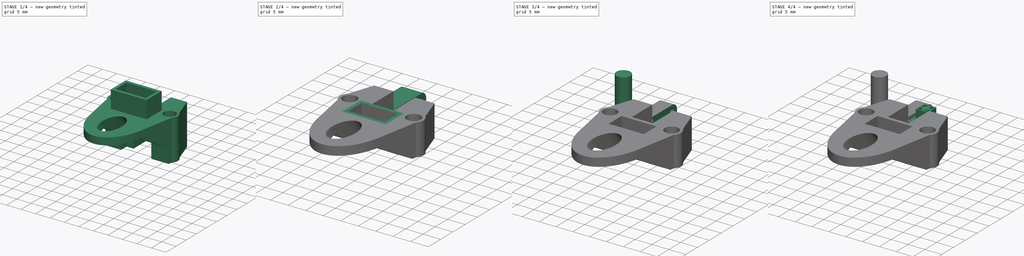
[diagram: build sequence overview — one tinted view per stage of 4, left to right]
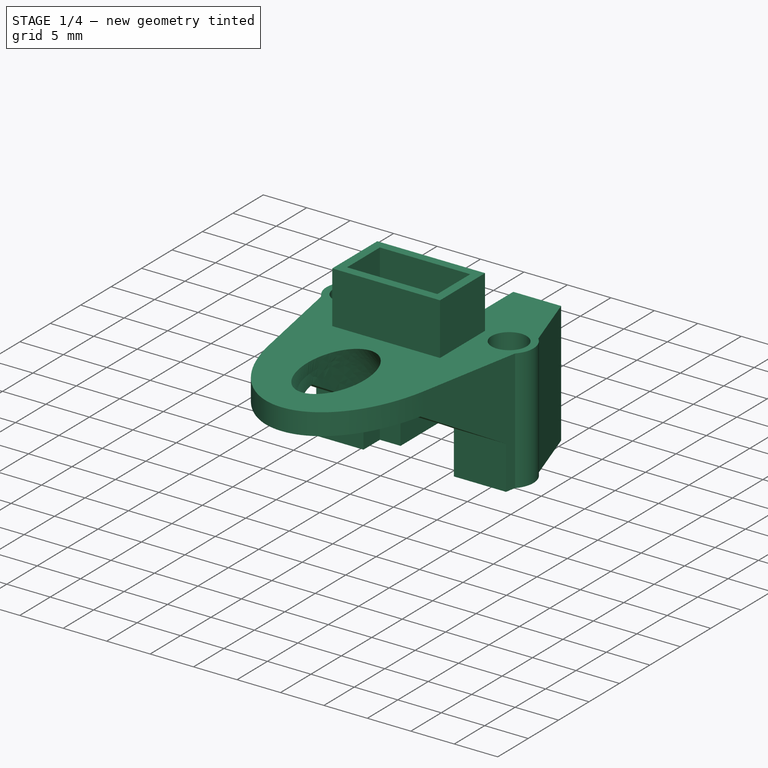
[diagram: stage 1 of 4 — iso view after this stage's code; geometry added in this stage tinted green]
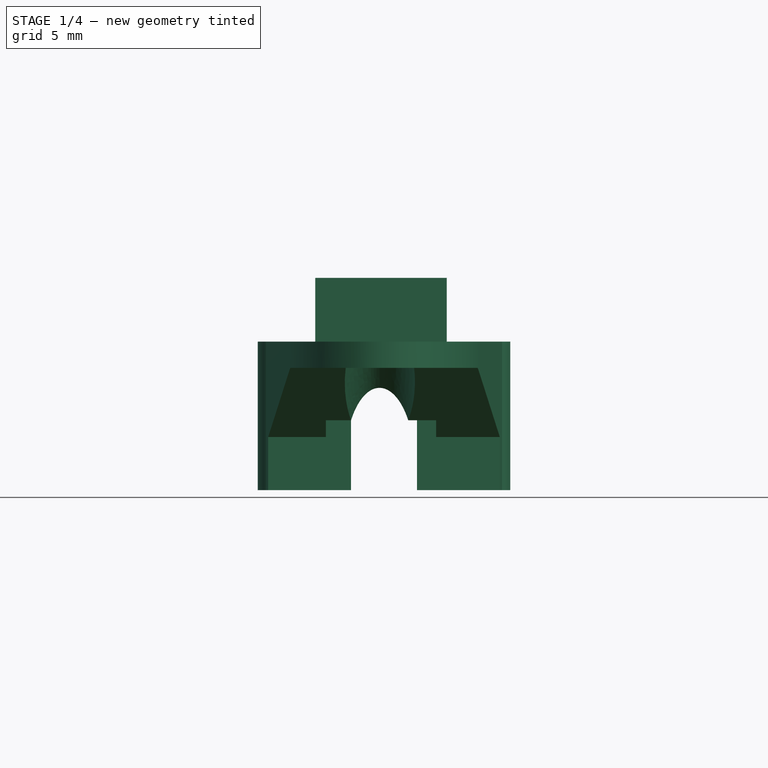
[diagram: stage 1 of 4 — front view after this stage's code; geometry added in this stage tinted green]
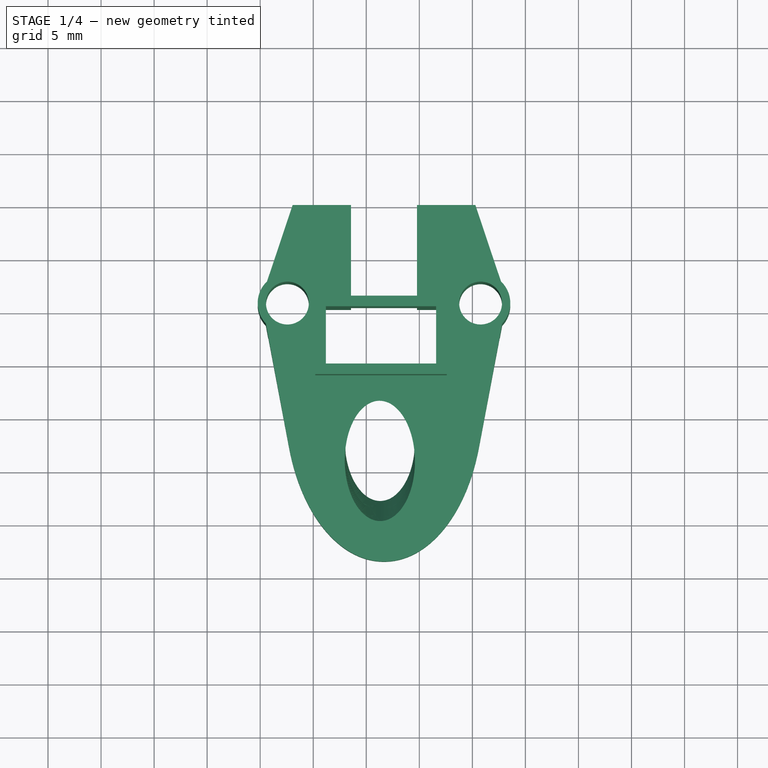
[diagram: stage 1 of 4 — top view after this stage's code; geometry added in this stage tinted green]
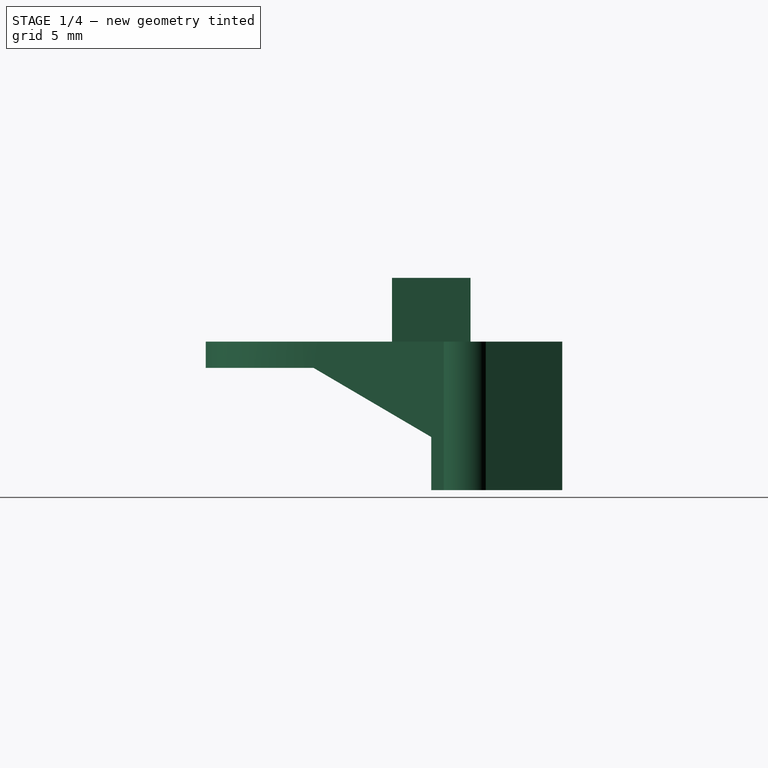
[diagram: stage 1 of 4 — right view after this stage's code; geometry added in this stage tinted green]
FCSTD DOCUMENT  (FreeCAD 0.21R33771 (Git))
Label: Holder
License: All rights reserved
LicenseURL: http://en.wikipedia.org/wiki/All_rights_reserved
objects: Sketcher::SketchObject×14, PartDesign::Pad×7, PartDesign::Pocket×7, PartDesign::Body×4, PartDesign::Plane×1
note: 47 computed .brp shape members not serialized (recipe doc carries the construction recipe); baked Part::Feature solids carry a one-line shape summary decoded from their .brp

FEATURE [Sketcher::SketchObject] Sketch002
  AttachmentOffset = pos=(0,0,25) rot=(0,0,1;0rad)
  FullyConstrained = false
  MapMode = 5
  Placement = pos=(25,-5.6e-15,5.6e-15) rot=(0.57735,0.57735,0.57735;2.0944rad)
  Support = -> [YZ_Plane]
  sketch-geometry (9):
    g0: LineSegment StartX=-34.7458 StartY=6.51976 StartZ=0 EndX=-34.7458 EndY=-0.002343 EndZ=0
    g1: LineSegment StartX=-34.7458 StartY=6.51976 StartZ=0 EndX=-23.4458 EndY=6.51976 EndZ=0
    g2: LineSegment StartX=-34.7458 StartY=2.68591 StartZ=0 EndX=-23.4458 EndY=2.68591 EndZ=0
    g3: LineSegment StartX=-23.4458 StartY=2.68591 StartZ=0 EndX=-23.4458 EndY=6.51976 EndZ=0
    g4: LineSegment StartX=-23.4458 StartY=6.51976 StartZ=0 EndX=-12.3455 EndY=6e-16 EndZ=0
    g5: LineSegment StartX=-34.7458 StartY=-0.002343 StartZ=0 EndX=-12.3455 EndY=6e-16 EndZ=0
    g6: LineSegment StartX=-34.7458 StartY=-0.002343 StartZ=0 EndX=-34.7458 EndY=-6.03706 EndZ=0
    g7: LineSegment StartX=-12.3455 StartY=6e-16 StartZ=0 EndX=-12.3455 EndY=-6.03706 EndZ=0
    g8: LineSegment StartX=-12.3455 StartY=-6.03706 StartZ=0 EndX=-34.7458 EndY=-6.03706 EndZ=0
  constraints (20):
    c: Vertical(g0)
    c: Horizontal(g1)
    c: PointOnObject(g2,g0)
    c: Horizontal(g2)
    c: Distance(g2) = 11.3
    c: Coincident(g3,g2)
    c: Vertical(g3)
    c: Coincident(g4,g3)
    c: PointOnObject(g4,g-1)
    c: Coincident(g5,g0)
    c: Coincident(g5,g4)
    c: Coincident(g1,g3)
    c: Coincident(g0,g1)
    c: Coincident(g6,g0)
    c: Vertical(g6)
    c: Coincident(g7,g4)
    c: Vertical(g7)
    c: Horizontal(g8)
    c: Coincident(g6,g8)
    c: Coincident(g7,g8)
FEATURE [Sketcher::SketchObject] Sketch004
  AttachmentOffset = pos=(0,0,5) rot=(0,0,1;0rad)
  FullyConstrained = false
  MapMode = 5
  Placement = pos=(0,0,5) rot=(0,0,1;0rad)
  Support = -> [XY_Plane]
  sketch-geometry (12):
    g0: LineSegment StartX=5.18563 StartY=-8.64848 StartZ=0 EndX=17.5856 EndY=-8.64848 EndZ=0
    g1: LineSegment StartX=17.5856 StartY=-8.64848 StartZ=0 EndX=17.5856 EndY=-16.0485 EndZ=0
    g2: LineSegment StartX=17.5856 StartY=-16.0485 StartZ=0 EndX=5.18563 EndY=-16.0485 EndZ=0
    g3: LineSegment StartX=5.18563 StartY=-16.0485 StartZ=0 EndX=5.18563 EndY=-8.64848 EndZ=0
    g4: LineSegment StartX=6.18563 StartY=-15.0485 StartZ=0 EndX=6.18563 EndY=-9.64848 EndZ=0
    g5: LineSegment StartX=6.18563 StartY=-9.64848 StartZ=0 EndX=16.5856 EndY=-9.64848 EndZ=0
    g6: LineSegment StartX=16.5856 StartY=-9.64848 StartZ=0 EndX=16.5856 EndY=-15.0485 EndZ=0
    g7: LineSegment StartX=6.18563 StartY=-13.3116 StartZ=0 EndX=5.18563 EndY=-13.3116 EndZ=0
    g8: LineSegment StartX=16.5856 StartY=-12.4958 StartZ=0 EndX=17.5856 EndY=-12.4958 EndZ=0
    g9: LineSegment StartX=10.8789 StartY=-9.64848 StartZ=0 EndX=10.8789 EndY=-8.64848 EndZ=0
    g10: LineSegment StartX=6.18563 StartY=-15.0485 StartZ=0 EndX=16.5856 EndY=-15.0485 EndZ=0
    g11: LineSegment StartX=9.56697 StartY=-15.0485 StartZ=0 EndX=9.56697 EndY=-16.0485 EndZ=0
  constraints (34):
    c: Coincident(g0,g1)
    c: Coincident(g1,g2)
    c: Coincident(g2,g3)
    c: Coincident(g3,g0)
    c: Horizontal(g0)
    c: Horizontal(g2)
    c: Vertical(g1)
    c: Vertical(g3)
    c: Vertical(g4)
    c: Distance(g4) = 5.4
    c: Coincident(g5,g4)
    c: Horizontal(g5)
    c: Coincident(g6,g5)
    c: Vertical(g6)
    c: Distance(g5) = 10.4
    c: PointOnObject(g7,g4)
    c: PointOnObject(g7,g3)
    c: Horizontal(g7)
    c: Distance(g7) = 1
    c: PointOnObject(g8,g6)
    c: PointOnObject(g8,g1)
    c: Perpendicular(g6,g8)
    c: Distance(g8) = 1
    c: PointOnObject(g9,g5)
    c: PointOnObject(g9,g0)
    c: Perpendicular(g5,g9)
    c: Distance(g9) = 1
    c: Coincident(g10,g4)
    c: Coincident(g10,g6)
    c: Horizontal(g10)
    c: PointOnObject(g11,g10)
    c: PointOnObject(g11,g2)
    c: Vertical(g11)
    c: Distance(g11) = 1
FEATURE [Sketcher::SketchObject] Sketch
  ExternalGeometry = -> [Sketch004]
  FullyConstrained = false
  MapMode = 5
  Placement = pos=(0,0,-5) rot=(0,0,1;3.14159rad)
  sketch-geometry (31):
    g0: LineSegment StartX=-20.2806 StartY=0 StartZ=0 EndX=-14.7756 EndY=0 EndZ=0
    g1: LineSegment StartX=-20.2806 StartY=0 StartZ=0 EndX=-22.7 EndY=7.21 EndZ=0
    g2: Circle CenterX=-20.7756 CenterY=9.24391 CenterZ=0 NormalX=0 NormalY=0 NormalZ=1 AngleXU=0 Radius=2.02
    g3: ArcOfCircle CenterX=-20.7756 CenterY=9.24391 CenterZ=0 NormalX=0 NormalY=0 NormalZ=1 AngleXU=0 Radius=2.8 StartAngle=2.38256 EndAngle=3.95466
    g4: LineSegment StartX=-22.8079 StartY=11.17 StartZ=0 EndX=-22.8079 EndY=22.7764 EndZ=0
    g5: LineSegment StartX=-14.7756 StartY=0 StartZ=0 EndX=-8.6381 EndY=0 EndZ=0
    g6: LineSegment StartX=-11.67 StartY=33.61 StartZ=0 EndX=-11.67 EndY=0 EndZ=0
    g7: ArcOfEllipse CenterX=-11.8107 CenterY=18.673 CenterZ=0 NormalX=0 NormalY=0 NormalZ=1 MajorRadius=14.9377 MinorRadius=9.205 AngleXU=1.56138 StartAngle=0 EndAngle=1.27722
    g8: LineSegment StartX=-11.67 StartY=33.61 StartZ=0 EndX=-11.9514 EndY=3.73591 EndZ=0
    g9: LineSegment StartX=-21.0153 StartY=18.7597 StartZ=0 EndX=-2.60613 EndY=18.5862 EndZ=0
    g10: GeomPoint X=-11.6999 Y=30.4369 Z=0
    g11: GeomPoint X=-11.9215 Y=6.90899 Z=0
    g12: LineSegment StartX=-22.807 StartY=11.1709 StartZ=0 EndX=-20.5808 EndY=23.0784 EndZ=0
    g13: LineSegment StartX=-14.7756 StartY=0 StartZ=0 EndX=-14.7756 EndY=9.64848 EndZ=0
    g14: LineSegment StartX=-16.5856 StartY=9.64848 StartZ=0 EndX=-14.7756 EndY=9.64848 EndZ=0
    g15: LineSegment StartX=-3.05943 StartY=0 StartZ=0 EndX=-8.56437 EndY=0 EndZ=0
    g16: LineSegment StartX=-3.05943 StartY=0 StartZ=0 EndX=-0.64 EndY=7.21 EndZ=0
    g17: Circle CenterX=-2.56437 CenterY=9.24391 CenterZ=0 NormalX=0 NormalY=0 NormalZ=1 AngleXU=0 Radius=2.02
    g18: ArcOfCircle CenterX=-2.56437 CenterY=9.24391 CenterZ=0 NormalX=0 NormalY=0 NormalZ=1 AngleXU=0 Radius=2.8 StartAngle=5.47012 EndAngle=7.04221
    g19: LineSegment StartX=-0.532082 StartY=11.17 StartZ=0 EndX=-0.532082 EndY=22.7764 EndZ=0
    g20: ArcOfEllipse CenterX=-11.5293 CenterY=18.673 CenterZ=0 NormalX=0 NormalY=0 NormalZ=1 MajorRadius=14.9377 MinorRadius=9.205 AngleXU=1.58022 StartAngle=5.00596 EndAngle=6.28319
    g21: LineSegment StartX=-11.67 StartY=33.61 StartZ=0 EndX=-11.3886 EndY=3.73591 EndZ=0
    g22: GeomPoint X=-11.6401 Y=30.4369 Z=0
    g23: GeomPoint X=-11.4185 Y=6.90899 Z=0
    g24: LineSegment StartX=-0.532956 StartY=11.1709 StartZ=0 EndX=-2.75922 EndY=23.0784 EndZ=0
    g25: LineSegment StartX=-8.56437 StartY=0 StartZ=0 EndX=-8.56437 EndY=9.64848 EndZ=0
    g26: LineSegment StartX=-16.5856 StartY=9.64848 StartZ=0 EndX=-14.7756 EndY=9.64848 EndZ=0
    g27: LineSegment StartX=-8.56437 StartY=9.64848 StartZ=0 EndX=-6.18563 EndY=9.64848 EndZ=0
    g28: LineSegment StartX=-16.5856 StartY=9.64848 StartZ=0 EndX=-16.5856 EndY=15.0485 EndZ=0
    g29: LineSegment StartX=-6.18563 StartY=9.64848 StartZ=0 EndX=-6.18563 EndY=15.0485 EndZ=0
    g30: LineSegment StartX=-16.5856 StartY=15.0485 StartZ=0 EndX=-6.18563 EndY=15.0485 EndZ=0
  constraints (11):
    c: Coincident(g26,g13)
    c: Horizontal(g26)
    c: Coincident(g27,g25)
    c: Horizontal(g27)
    c: Coincident(g28,g26)
    c: Vertical(g28)
    c: Coincident(g29,g27)
    c: Vertical(g29)
    c: Coincident(g30,g28)
    c: Coincident(g30,g29)
    c: Horizontal(g30)
FEATURE [PartDesign::Pad] Pad  label="Body001"
  Direction = (0,1e-15,1)
  Length = 14
  Length2 = 10
  Placement = pos=(0,0,-5) rot=(0,0,1;3.14159rad)
  Profile = -> Sketch
  ReferenceAxis = -> Sketch [N_Axis]
  Type = 0
FEATURE [PartDesign::Pocket] Pocket001  label="FrontDiagPocket"
  BaseFeature = -> Pad
  Direction = (-1,2e-16,-3e-16)
  Length = 30
  Length2 = 5
  Placement = pos=(0,0,-5) rot=(0,0,1;3.14159rad)
  Profile = -> Sketch002
  ReferenceAxis = -> Sketch002 [N_Axis]
  Type = 0
FEATURE [PartDesign::Pad] Pad001  label="XT30Holder"
  BaseFeature = -> Pocket001
  Direction = (0,0,1)
  Length = 10
  Length2 = 10
  Placement = pos=(0,0,-5) rot=(0,0,1;3.14159rad)
  Profile = -> Sketch004
  ReferenceAxis = -> Sketch004 [N_Axis]
  Type = 0
FEATURE [PartDesign::Plane] DatumPlane
  AttachmentOffset = pos=(-13,22,7) rot=(1,0,0;-0.663225rad)
  Length = 25.46
  MapMode = 5
  Placement = pos=(13,-22,16) rot=(0,0.325568,-0.945519;3.14159rad)
  ResizeMode = 1
  Support = -> [Pad001]
  Width = 31.1
FEATURE [Sketcher::SketchObject] Sketch005
  AttachmentOffset = pos=(-8,49,0) rot=(0,0,1;0rad)
  FullyConstrained = false
  MapMode = 5
  Placement = pos=(21,-60.6125,-14.1674) rot=(0,-0.325568,0.945519;3.14159rad)
  Support = -> [DatumPlane]
  sketch-geometry (6):
    g0: Circle CenterX=9.72225 CenterY=-43.0138 CenterZ=0 NormalX=0 NormalY=0 NormalZ=1 AngleXU=0 Radius=3.15882
    g1: Ellipse CenterX=9.72225 CenterY=-43.0138 CenterZ=0 NormalX=0 NormalY=0 NormalZ=1 MajorRadius=4.4677 MinorRadius=3.30767 AngleXU=1.5862
    g2: LineSegment StartX=9.65342 StartY=-38.5466 StartZ=0 EndX=9.79108 EndY=-47.481 EndZ=0
    g3: LineSegment StartX=6.41497 StartY=-43.0648 StartZ=0 EndX=13.0295 EndY=-42.9629 EndZ=0
    g4: GeomPoint X=9.67598 Y=-40.0109 Z=0
    g5: GeomPoint X=9.76852 Y=-46.0167 Z=0
  constraints (2):
    c: InternalAlignment(g2-g5 -> g1) x4
    c: Coincident(g1,g0)
FEATURE [PartDesign::Pocket] Pocket002  label="AntenaDiagonalHole"
  BaseFeature = -> Pad001
  Direction = (0,0.615661,-0.788011)
  Length = 30
  Length2 = 5
  Placement = pos=(0,0,-5) rot=(0,0,1;3.14159rad)
  Profile = -> Sketch005
  ReferenceAxis = -> Sketch005 [N_Axis]
  Type = 0
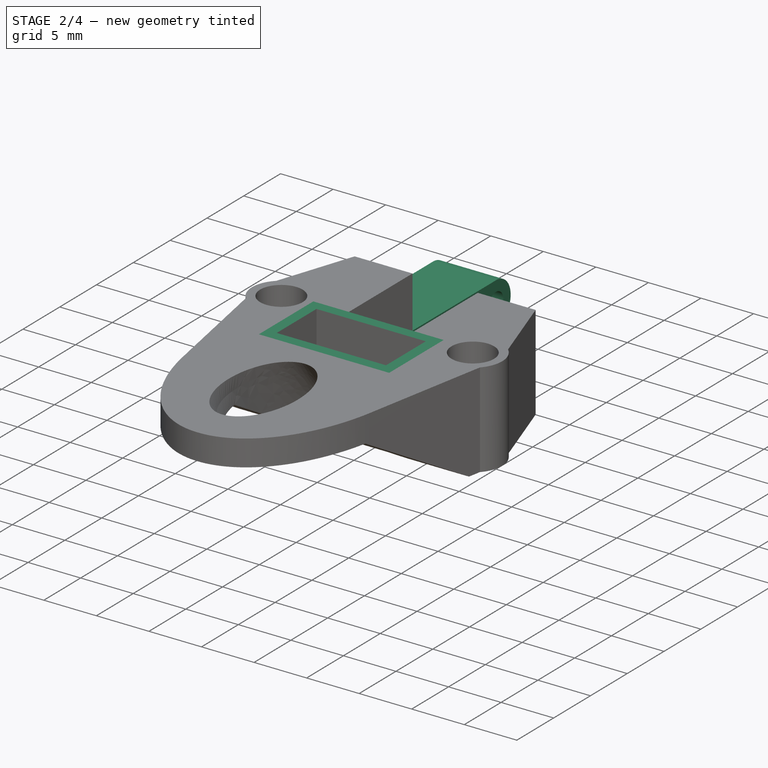
[diagram: stage 2 of 4 — iso view after this stage's code; geometry added in this stage tinted green]
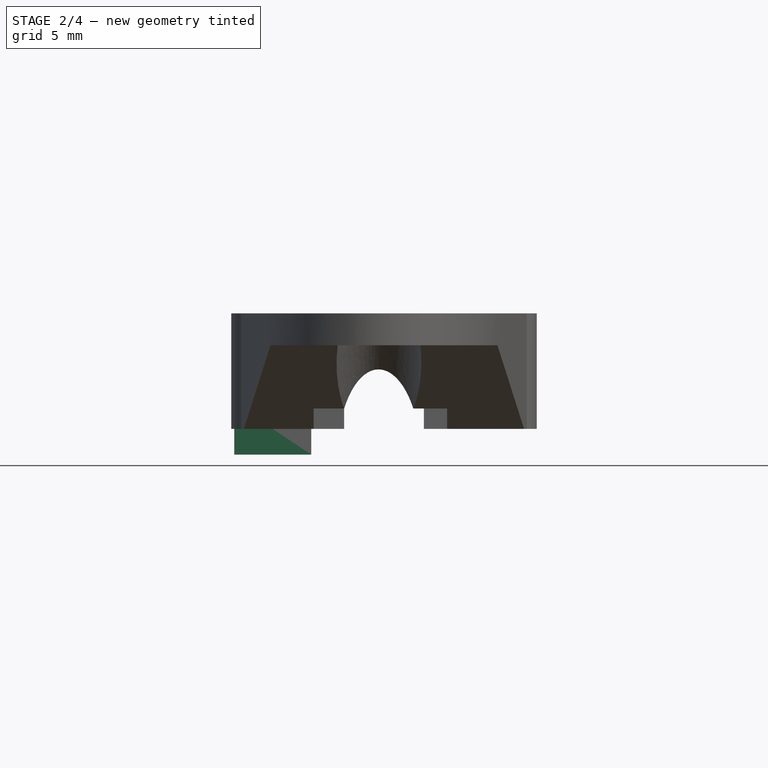
[diagram: stage 2 of 4 — front view after this stage's code; geometry added in this stage tinted green]
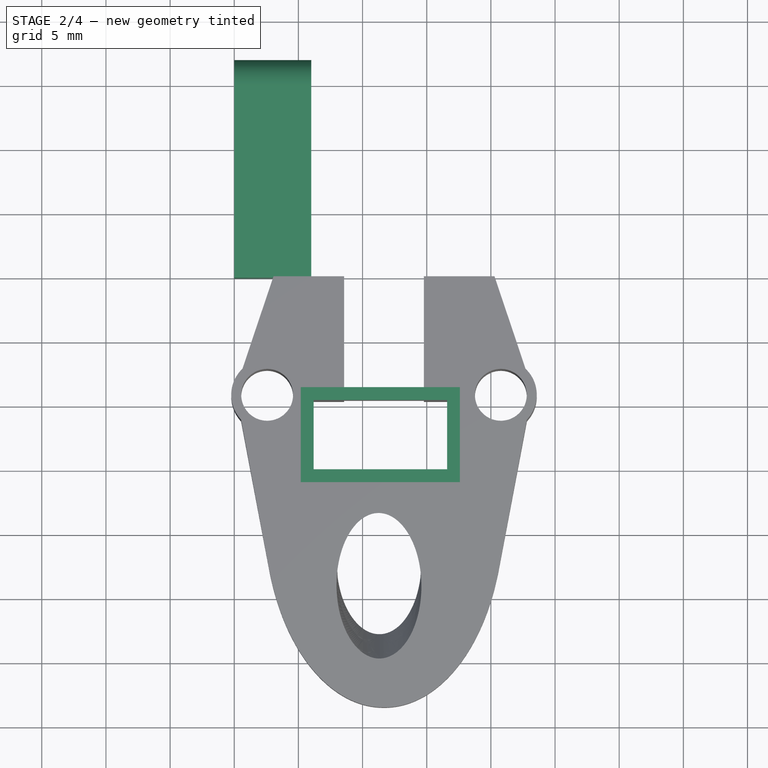
[diagram: stage 2 of 4 — top view after this stage's code; geometry added in this stage tinted green]
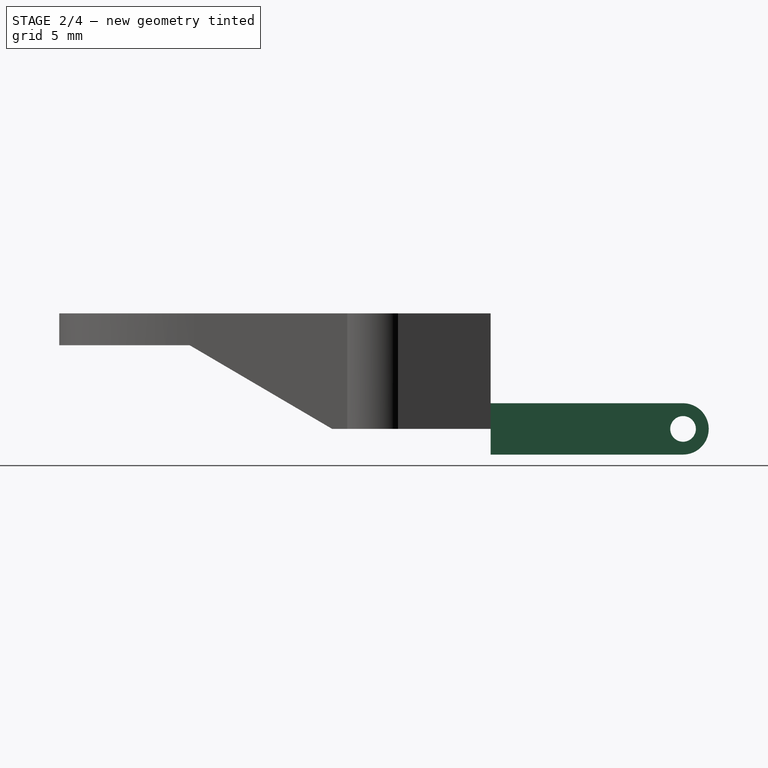
[diagram: stage 2 of 4 — right view after this stage's code; geometry added in this stage tinted green]
FEATURE [PartDesign::Body] Body002  label="FramePost"
  Group = -> [Sketch011,Pad005]
  Origin = -> Origin002
  Placement = pos=(2.5,-9.3,-6) rot=(0,0,1;0rad)
  Tip = -> Pad005
FEATURE [Sketcher::SketchObject] Sketch012
  FullyConstrained = true
  MapMode = 5
  Placement = pos=(0,0,0) rot=(0.57735,0.57735,0.57735;2.0944rad)
  Support = -> [YZ_Plane003]
  sketch-geometry (5):
    g0: Circle CenterX=15 CenterY=0 CenterZ=0 NormalX=0 NormalY=0 NormalZ=1 AngleXU=0 Radius=1
    g1: ArcOfCircle CenterX=15 CenterY=0 CenterZ=0 NormalX=0 NormalY=0 NormalZ=1 AngleXU=0 Radius=2 StartAngle=4.71239 EndAngle=7.85398
    g2: LineSegment StartX=0 StartY=2 StartZ=0 EndX=15 EndY=2 EndZ=0
    g3: LineSegment StartX=15 StartY=-2 StartZ=0 EndX=0 EndY=-2 EndZ=0
    g4: LineSegment StartX=0 StartY=-2 StartZ=0 EndX=0 EndY=2 EndZ=0
  constraints (15):
    c: PointOnObject(g0,g-1)
    c: Diameter(g0) = 2
    c: Coincident(g1,g0)
    c: Diameter(g1) = 4
    c: Coincident(g3,g4)
    c: Coincident(g4,g2)
    c: Horizontal(g2)
    c: Horizontal(g3)
    c: Vertical(g4)
    c: Coincident(g1,g2)
    c: Coincident(g1,g3)
    c: DistanceX(g-2,g2) = 0
    c: Distance(g2) = 15
    c: Equal(g2,g3)
    c: Vertical(g1,g0)
FEATURE [PartDesign::Pad] Pad006
  Direction = (1,-2e-16,3e-16)
  Length = 6
  Length2 = 10
  Placement = pos=(0,0,0) rot=(1,1,1;2.0944rad)
  Profile = -> Sketch012
  ReferenceAxis = -> Sketch012 [N_Axis]
  Type = 0
FEATURE [PartDesign::Body] Body003  label="AntennaHolder"
  Group = -> [Sketch012,Pad006,Sketch013,Sketch014,Pocket,Pocket004]
  Origin = -> Origin003
  Tip = -> Pocket004
FEATURE [Sketcher::SketchObject] Sketch015
  FullyConstrained = false
  MapMode = 5
  Placement = pos=(0,0,-5) rot=(0,1,0;3.14159rad)
  Support = -> [Pocket002]
  sketch-geometry (4):
    g0: LineSegment StartX=10.4967 StartY=14.5479 StartZ=0 EndX=-39.727 EndY=14.5479 EndZ=0
    g1: LineSegment StartX=-39.727 StartY=14.5479 StartZ=0 EndX=-39.727 EndY=-38.0132 EndZ=0
    g2: LineSegment StartX=-39.727 StartY=-38.0132 StartZ=0 EndX=10.4967 EndY=-38.0132 EndZ=0
    g3: LineSegment StartX=10.4967 StartY=-38.0132 StartZ=0 EndX=10.4967 EndY=14.5479 EndZ=0
  constraints (8):
    c: Coincident(g0,g1)
    c: Coincident(g1,g2)
    c: Coincident(g2,g3)
    c: Coincident(g3,g0)
    c: Horizontal(g0)
    c: Horizontal(g2)
    c: Vertical(g1)
    c: Vertical(g3)
FEATURE [PartDesign::Pocket] Pocket005
  BaseFeature = -> Pocket002
  Direction = (0,1e-15,1)
  Length = 5
  Length2 = 5
  Placement = pos=(0,0,-5) rot=(0,0,1;3.14159rad)
  Profile = -> Sketch015
  ReferenceAxis = -> Sketch015 [N_Axis]
  Type = 0
FEATURE [Sketcher::SketchObject] Sketch016
  FullyConstrained = false
  MapMode = 5
  Placement = pos=(0,0,15) rot=(0,0,1;3.14159rad)
  Support = -> [Pocket005]
  sketch-geometry (4):
    g0: LineSegment StartX=-23.1932 StartY=18.8011 StartZ=0 EndX=1.46715 EndY=18.8011 EndZ=0
    g1: LineSegment StartX=1.46715 StartY=18.8011 StartZ=0 EndX=1.46715 EndY=6.51272 EndZ=0
    g2: LineSegment StartX=1.46715 StartY=6.51272 StartZ=0 EndX=-23.1932 EndY=6.51272 EndZ=0
    g3: LineSegment StartX=-23.1932 StartY=6.51272 StartZ=0 EndX=-23.1932 EndY=18.8011 EndZ=0
  constraints (8):
    c: Coincident(g0,g1)
    c: Coincident(g1,g2)
    c: Coincident(g2,g3)
    c: Coincident(g3,g0)
    c: Horizontal(g0)
    c: Horizontal(g2)
    c: Vertical(g1)
    c: Vertical(g3)
FEATURE [PartDesign::Pocket] Pocket006
  BaseFeature = -> Pocket005
  Direction = (0,0,-1)
  Length = 6
  Length2 = 5
  Placement = pos=(0,0,-5) rot=(0,0,1;3.14159rad)
  Profile = -> Sketch016
  ReferenceAxis = -> Sketch016 [N_Axis]
  Type = 0
FEATURE [PartDesign::Body] Body
  Group = -> [Sketch,Pad,Sketch002,Pocket001,Sketch004,Pad001,DatumPlane,Sketch005,Pocket002,Sketch015,Pocket005,Sketch016,Pocket006]
  Origin = -> Origin
  Tip = -> Pocket006
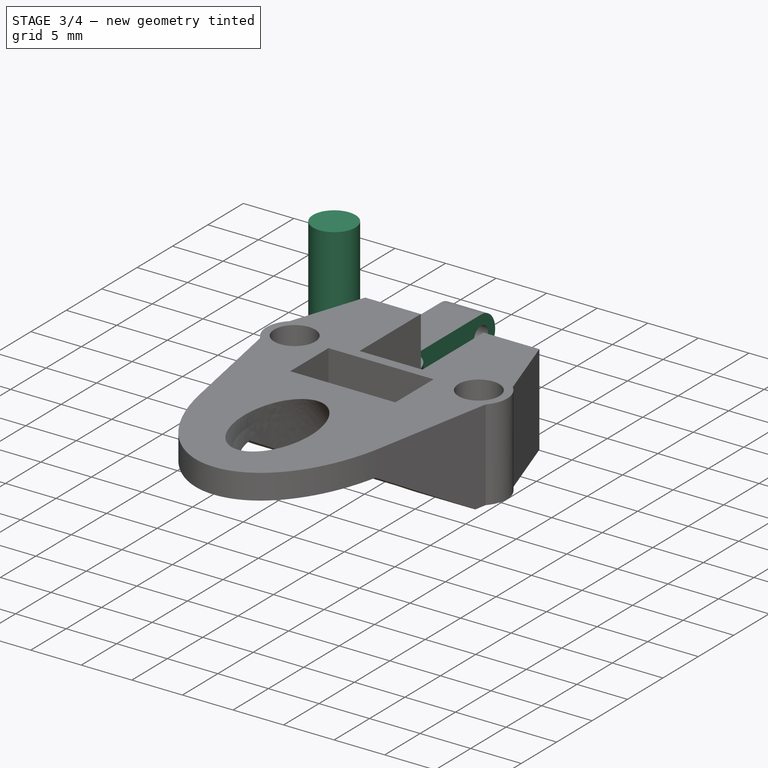
[diagram: stage 3 of 4 — iso view after this stage's code; geometry added in this stage tinted green]
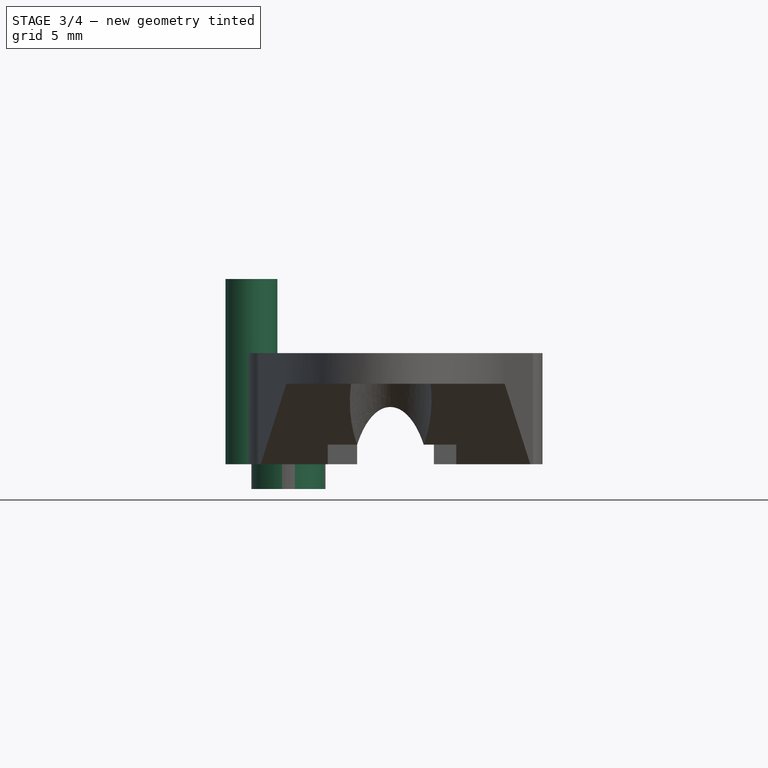
[diagram: stage 3 of 4 — front view after this stage's code; geometry added in this stage tinted green]
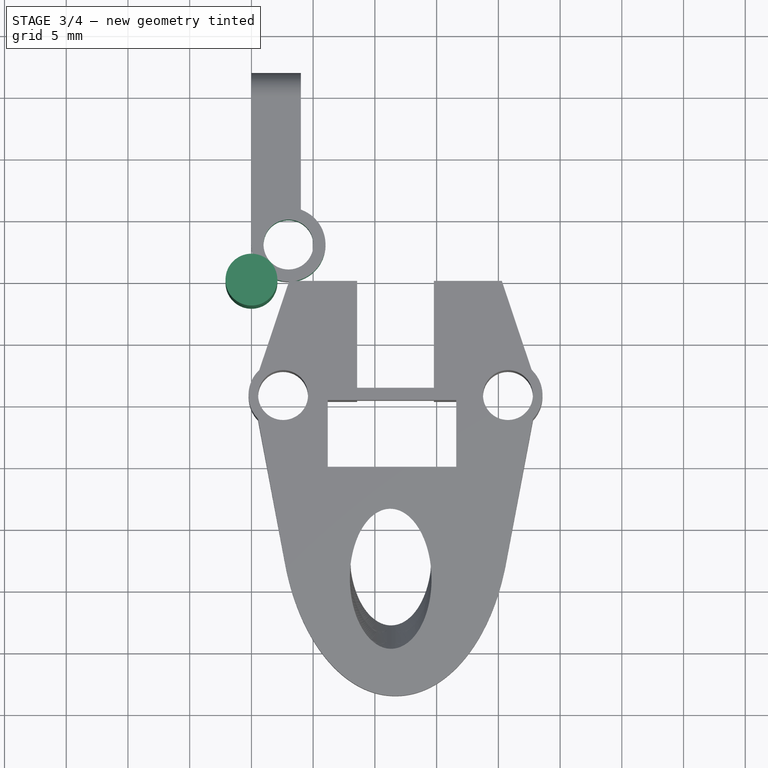
[diagram: stage 3 of 4 — top view after this stage's code; geometry added in this stage tinted green]
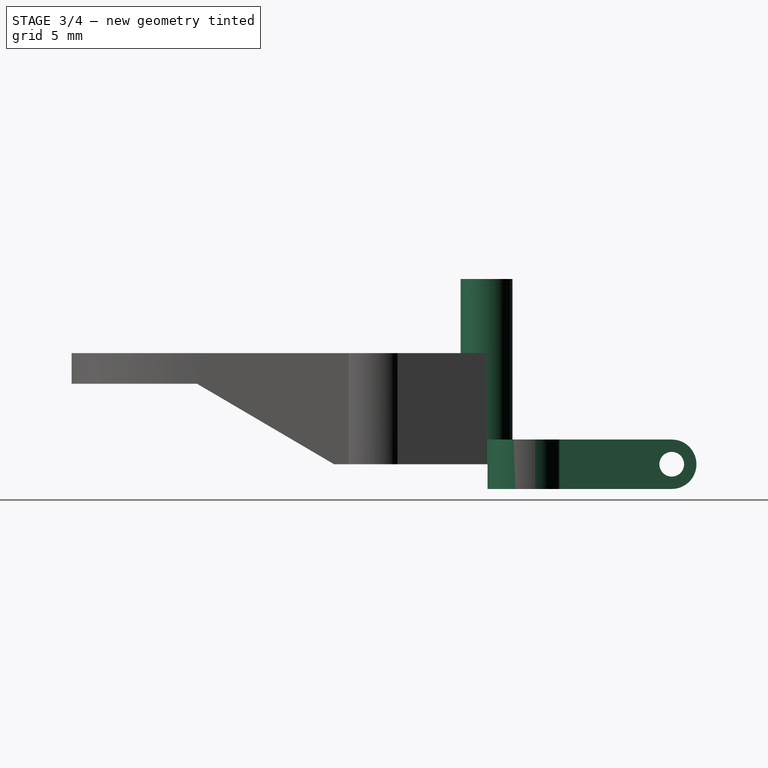
[diagram: stage 3 of 4 — right view after this stage's code; geometry added in this stage tinted green]
FEATURE [PartDesign::Body] Body001  label="ELRS RX"
  Group = -> [Sketch007,Pad002,Sketch008,Pad003,Sketch009,Pad004,Sketch010,Pocket003]
  Origin = -> Origin001
  Placement = pos=(6,4,8) rot=(0.707107,0,-0.707107;3.14159rad)
  Tip = -> Pocket003
FEATURE [Sketcher::SketchObject] Sketch011
  FullyConstrained = true
  MapMode = 5
  Support = -> [XY_Plane002]
  sketch-geometry (1):
    g0: Circle CenterX=0 CenterY=0 CenterZ=0 NormalX=0 NormalY=0 NormalZ=1 AngleXU=0 Radius=2.1
  constraints (2):
    c: Coincident(g0,g-1)
    c: Diameter(g0) = 4.2
FEATURE [PartDesign::Pad] Pad005
  Direction = (0,0,1)
  Length = 15
  Length2 = 10
  Profile = -> Sketch011
  ReferenceAxis = -> Sketch011 [N_Axis]
  Type = 0
FEATURE [Sketcher::SketchObject] Sketch013
  ExternalGeometry = -> [Pad006]
  FullyConstrained = false
  MapMode = 5
  Placement = pos=(-8e-16,1.1e-15,2) rot=(0,0,-1;1.5708rad)
  Support = -> [Pad006]
  sketch-geometry (1):
    g0: Circle CenterX=-3.07115 CenterY=3 CenterZ=0 NormalX=0 NormalY=0 NormalZ=1 AngleXU=0 Radius=2.02
  constraints (1):
    c: Diameter(g0) = 4.04
FEATURE [Sketcher::SketchObject] Sketch014
  ExternalGeometry = -> [Pad006]
  FullyConstrained = false
  MapMode = 5
  Placement = pos=(-8e-16,1.1e-15,2) rot=(0,0,-1;1.5708rad)
  Support = -> [Pad006]
  sketch-geometry (8):
    g0: Circle CenterX=-3.07336 CenterY=3 CenterZ=0 NormalX=0 NormalY=0 NormalZ=1 AngleXU=0 Radius=2.02
    g1: ArcOfCircle CenterX=-3.07336 CenterY=3 CenterZ=0 NormalX=0 NormalY=0 NormalZ=1 AngleXU=0 Radius=3 StartAngle=4.71239 EndAngle=9.08251
    g2: LineSegment StartX=-5.89934 StartY=4.00688 StartZ=0 EndX=-23.0361 EndY=4.00688 EndZ=0
    g3: LineSegment StartX=-23.0361 StartY=4.00688 StartZ=0 EndX=-23.9995 EndY=10.4944 EndZ=0
    g4: LineSegment StartX=-23.9995 StartY=10.4944 StartZ=0 EndX=1.36867 EndY=10.4944 EndZ=0
    g5: LineSegment StartX=1.36867 StartY=10.4944 StartZ=0 EndX=3.12862 EndY=-3.55825 EndZ=0
    g6: LineSegment StartX=3.12862 StartY=-3.55825 StartZ=0 EndX=-3.07336 EndY=-3.55825 EndZ=0
    g7: LineSegment StartX=-3.07336 StartY=1e-06 StartZ=0 EndX=-3.07336 EndY=-3.55825 EndZ=0
  constraints (13):
    c: Diameter(g0) = 4.04
    c: Coincident(g1,g0)
    c: Tangent(g1,g-3)
    c: Horizontal(g2)
    c: Coincident(g2,g3)
    c: Coincident(g3,g4)
    c: Horizontal(g4)
    c: Coincident(g4,g5)
    c: Coincident(g5,g6)
    c: Horizontal(g6)
    c: Vertical(g7)
    c: Coincident(g6,g7)
    c: Coincident(g1,g2)
FEATURE [PartDesign::Pocket] Pocket
  BaseFeature = -> Pad006
  Direction = (4e-16,-6e-16,-1)
  Length = 5
  Length2 = 5
  Placement = pos=(0,0,0) rot=(1,1,1;2.0944rad)
  Profile = -> Sketch013
  ReferenceAxis = -> Sketch013 [N_Axis]
  Type = 1
FEATURE [PartDesign::Pocket] Pocket004
  BaseFeature = -> Pocket
  Direction = (4e-16,-6e-16,-1)
  Length = 5
  Length2 = 5
  Placement = pos=(0,0,0) rot=(1,1,1;2.0944rad)
  Profile = -> Sketch014
  ReferenceAxis = -> Sketch014 [N_Axis]
  Type = 1
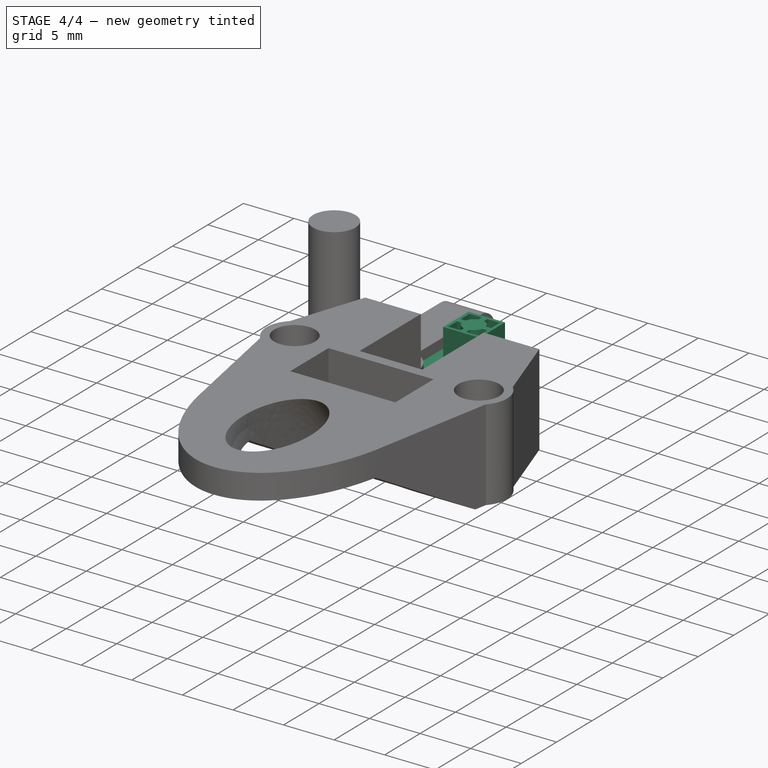
[diagram: stage 4 of 4 — iso view after this stage's code; geometry added in this stage tinted green]
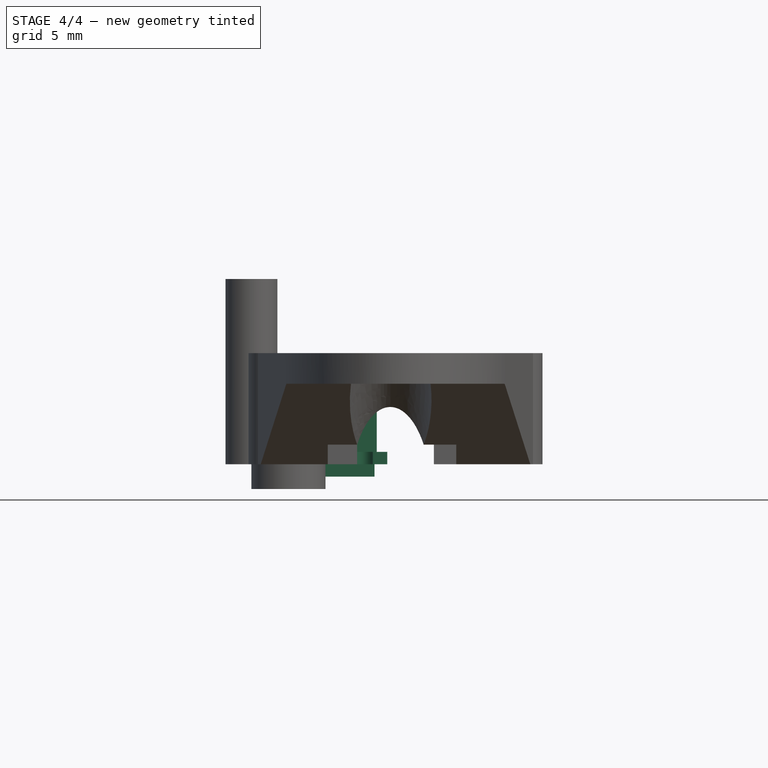
[diagram: stage 4 of 4 — front view after this stage's code; geometry added in this stage tinted green]
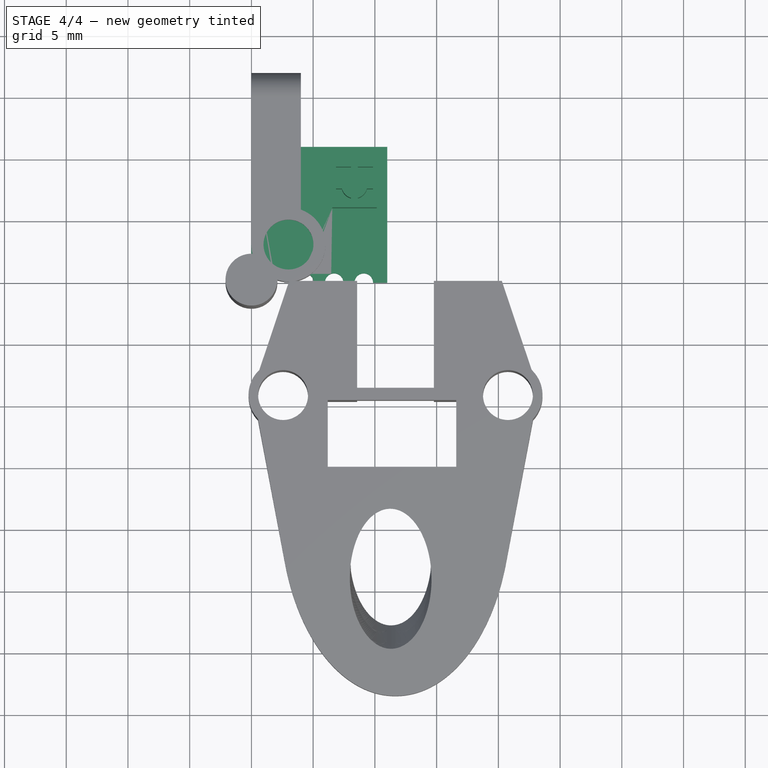
[diagram: stage 4 of 4 — top view after this stage's code; geometry added in this stage tinted green]
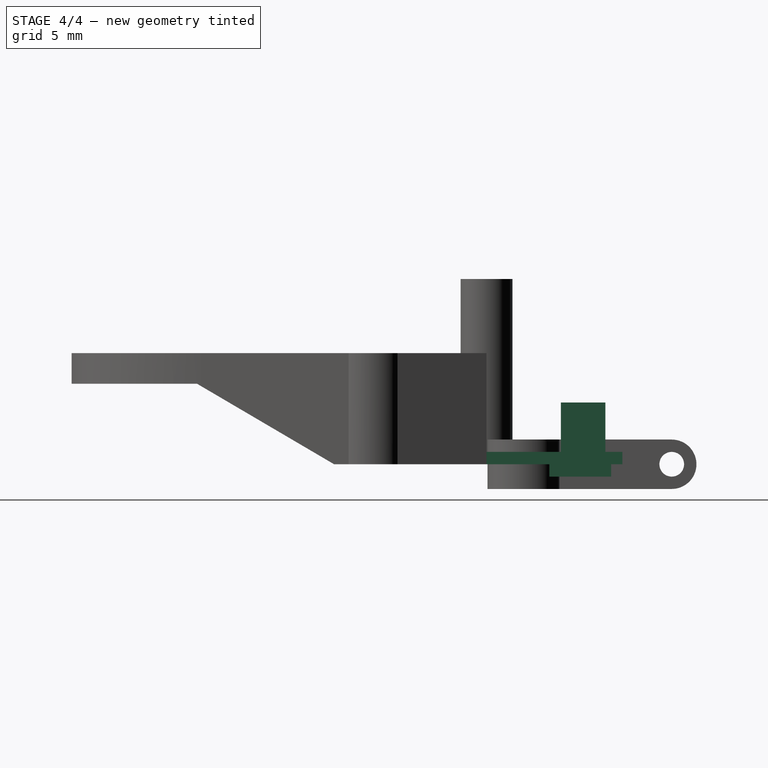
[diagram: stage 4 of 4 — right view after this stage's code; geometry added in this stage tinted green]
FEATURE [Sketcher::SketchObject] Sketch007
  FullyConstrained = true
  MapMode = 5
  Support = -> [XY_Plane001]
  sketch-geometry (4):
    g0: LineSegment StartX=0 StartY=0 StartZ=0 EndX=11 EndY=0 EndZ=0
    g1: LineSegment StartX=11 StartY=0 StartZ=0 EndX=11 EndY=11 EndZ=0
    g2: LineSegment StartX=11 StartY=11 StartZ=0 EndX=0 EndY=11 EndZ=0
    g3: LineSegment StartX=0 StartY=11 StartZ=0 EndX=0 EndY=0 EndZ=0
  constraints (11):
    c: Coincident(g0,g1)
    c: Coincident(g1,g2)
    c: Coincident(g2,g3)
    c: Coincident(g3,g0)
    c: Horizontal(g0)
    c: Horizontal(g2)
    c: Vertical(g1)
    c: Vertical(g3)
    c: Coincident(g0,g-1)
    c: Distance(g2) = 11
    c: Equal(g2,g1)
FEATURE [PartDesign::Pad] Pad002
  Direction = (0,0,1)
  Length = 1
  Length2 = 10
  Profile = -> Sketch007
  ReferenceAxis = -> Sketch007 [N_Axis]
  Type = 0
FEATURE [Sketcher::SketchObject] Sketch008
  FullyConstrained = false
  MapMode = 5
  Placement = pos=(0,0,1) rot=(0,0,1;0rad)
  Support = -> [Pad002]
  sketch-geometry (24):
    g0: LineSegment StartX=9.84885 StartY=9.32387 StartZ=0 EndX=9.84885 EndY=8.09302 EndZ=0
    g1: LineSegment StartX=6.84885 StartY=6.32387 StartZ=0 EndX=6.84885 EndY=7.55302 EndZ=0
    g2: ArcOfCircle CenterX=8.34129 CenterY=7.82302 CenterZ=0 NormalX=0 NormalY=0 NormalZ=1 AngleXU=0 Radius=1.05123 StartAngle=1.83699 EndAngle=2.88184
    g3: LineSegment StartX=8.61783 StartY=9.32387 StartZ=0 EndX=8.61783 EndY=8.83723 EndZ=0
    g4: LineSegment StartX=9.84885 StartY=8.09302 StartZ=0 EndX=9.35726 EndY=8.09302 EndZ=0
    g5: LineSegment StartX=9.84885 StartY=7.55302 StartZ=0 EndX=9.35726 EndY=7.55302 EndZ=0
    g6: LineSegment StartX=8.06475 StartY=9.32387 StartZ=0 EndX=8.06475 EndY=8.83723 EndZ=0
    g7: LineSegment StartX=8.61783 StartY=6.80882 StartZ=0 EndX=8.61783 EndY=6.32387 EndZ=0
    g8: LineSegment StartX=7.32533 StartY=8.09302 StartZ=0 EndX=6.84885 EndY=8.09302 EndZ=0
    g9: LineSegment StartX=7.32533 StartY=7.55302 StartZ=0 EndX=6.84885 EndY=7.55302 EndZ=0
    g10: LineSegment StartX=8.06475 StartY=6.80882 StartZ=0 EndX=8.06475 EndY=6.32387 EndZ=0
    g11: ArcOfCircle CenterX=8.34129 CenterY=7.82302 CenterZ=0 NormalX=0 NormalY=0 NormalZ=1 AngleXU=0 Radius=1.05123 StartAngle=3.40135 EndAngle=4.4462
    g12: ArcOfCircle CenterX=8.34129 CenterY=7.82302 CenterZ=0 NormalX=0 NormalY=0 NormalZ=1 AngleXU=0 Radius=1.05123 StartAngle=4.97858 EndAngle=6.02343
    g13: ArcOfCircle CenterX=8.34129 CenterY=7.82302 CenterZ=0 NormalX=0 NormalY=0 NormalZ=1 AngleXU=0 Radius=1.05123 StartAngle=0.259753 EndAngle=1.3046
    g14: LineSegment StartX=6.84885 StartY=8.09302 StartZ=0 EndX=6.84885 EndY=9.32387 EndZ=0
    g15: LineSegment StartX=9.84885 StartY=7.55302 StartZ=0 EndX=9.84885 EndY=6.32387 EndZ=0
    g16: LineSegment StartX=6.54885 StartY=9.62919 StartZ=0 EndX=10.1488 EndY=9.62919 EndZ=0
    g17: LineSegment StartX=6.54885 StartY=6.02387 StartZ=0 EndX=6.54885 EndY=9.62919 EndZ=0
    g18: LineSegment StartX=10.1488 StartY=9.62919 StartZ=0 EndX=10.1488 EndY=6.02387 EndZ=0
    g19: LineSegment StartX=10.1488 StartY=6.02387 StartZ=0 EndX=6.54885 EndY=6.02387 EndZ=0
    g20: LineSegment StartX=8.06475 StartY=9.32387 StartZ=0 EndX=6.84885 EndY=9.32387 EndZ=0
    g21: LineSegment StartX=8.61783 StartY=9.32387 StartZ=0 EndX=9.84885 EndY=9.32387 EndZ=0
    g22: LineSegment StartX=6.84885 StartY=6.32387 StartZ=0 EndX=8.06475 EndY=6.32387 EndZ=0
    g23: LineSegment StartX=8.61783 StartY=6.32387 StartZ=0 EndX=9.84885 EndY=6.32387 EndZ=0
  constraints (48):
    c: Vertical(g0)
    c: Vertical(g1)
    c: Vertical(g3)
    c: Horizontal(g4)
    c: Horizontal(g5)
    c: Vertical(g6)
    c: PointOnObject(g10,g2)
    c: PointOnObject(g4,g2)
    c: PointOnObject(g7,g2)
    c: PointOnObject(g5,g2)
    c: Coincident(g13,g3)
    c: Coincident(g2,g6)
    c: Equal(g2,g11)
    c: Coincident(g2,g8)
    c: Coincident(g11,g9)
    c: Coincident(g2,g11)
    c: Equal(g11,g12)
    c: PointOnObject(g11,g10)
    c: PointOnObject(g12,g7)
    c: Coincident(g11,g12)
    c: Equal(g12,g13)
    c: PointOnObject(g12,g5)
    c: PointOnObject(g13,g4)
    c: Coincident(g12,g13)
    c: Coincident(g1,g9)
    c: Coincident(g14,g8)
    c: Coincident(g0,g4)
    c: Coincident(g15,g5)
    c: Horizontal(g16)
    c: Coincident(g17,g16)
    c: Vertical(g17)
    c: Coincident(g18,g16)
    c: Vertical(g18)
    c: Coincident(g19,g18)
    c: Coincident(g19,g17)
    c: Horizontal(g19)
    c: Coincident(g20,g6)
    c: Coincident(g20,g14)
    c: Horizontal(g20)
    c: Coincident(g21,g3)
    c: Coincident(g21,g0)
    c: Horizontal(g21)
    c: Coincident(g22,g1)
    c: Coincident(g22,g10)
    c: Horizontal(g22)
    c: Coincident(g23,g7)
    c: Coincident(g23,g15)
    c: Horizontal(g23)
FEATURE [PartDesign::Pad] Pad003
  BaseFeature = -> Pad002
  Direction = (0,0,1)
  Length = 4
  Length2 = 10
  Profile = -> Sketch008
  ReferenceAxis = -> Sketch008 [N_Axis]
  Type = 0
FEATURE [Sketcher::SketchObject] Sketch009
  FullyConstrained = false
  MapMode = 5
  Placement = pos=(0,0,0) rot=(1,0,0;3.14159rad)
  Support = -> [Pad003]
  sketch-geometry (4):
    g0: LineSegment StartX=9.96923 StartY=-10.0912 StartZ=0 EndX=4.96923 EndY=-10.0912 EndZ=0
    g1: LineSegment StartX=4.96923 StartY=-10.0912 StartZ=0 EndX=4.96923 EndY=-5.09115 EndZ=0
    g2: LineSegment StartX=4.96923 StartY=-5.09115 StartZ=0 EndX=9.96923 EndY=-5.09115 EndZ=0
    g3: LineSegment StartX=9.96923 StartY=-5.09115 StartZ=0 EndX=9.96923 EndY=-10.0912 EndZ=0
  constraints (10):
    c: Coincident(g0,g1)
    c: Coincident(g1,g2)
    c: Coincident(g2,g3)
    c: Coincident(g3,g0)
    c: Horizontal(g0)
    c: Horizontal(g2)
    c: Vertical(g1)
    c: Vertical(g3)
    c: Equal(g2,g3)
    c: Distance(g2) = 5
FEATURE [PartDesign::Pad] Pad004
  BaseFeature = -> Pad003
  Direction = (0,0,-1)
  Length = 1
  Length2 = 10
  Profile = -> Sketch009
  ReferenceAxis = -> Sketch009 [N_Axis]
  Type = 0
FEATURE [Sketcher::SketchObject] Sketch010
  ExternalGeometry = -> [Pad004]
  FullyConstrained = true
  MapMode = 5
  Placement = pos=(0,0,1) rot=(0,0,1;0rad)
  Support = -> [Pad004]
  sketch-geometry (4):
    g0: Circle CenterX=1.9 CenterY=0 CenterZ=0 NormalX=0 NormalY=0 NormalZ=1 AngleXU=0 Radius=0.75
    g1: Circle CenterX=4.3 CenterY=0 CenterZ=0 NormalX=0 NormalY=0 NormalZ=1 AngleXU=0 Radius=0.75
    g2: Circle CenterX=6.7 CenterY=0 CenterZ=0 NormalX=0 NormalY=0 NormalZ=1 AngleXU=0 Radius=0.75
    g3: Circle CenterX=9.1 CenterY=0 CenterZ=0 NormalX=0 NormalY=0 NormalZ=1 AngleXU=0 Radius=0.75
  constraints (12):
    c: PointOnObject(g0,g-1)
    c: Diameter(g0) = 1.5
    c: PointOnObject(g1,g-1)
    c: PointOnObject(g2,g-1)
    c: PointOnObject(g3,g-1)
    c: Diameter(g1) = 1.5
    c: Diameter(g3) = 1.5
    c: Diameter(g2) = 1.5
    c: Distance(g-1,g0) = 1.9
    c: Distance(g3,g-3) = 1.9
    c: Distance(g0,g1) = 2.4
    c: Distance(g1,g2) = 2.4
FEATURE [PartDesign::Pocket] Pocket003
  BaseFeature = -> Pad004
  Direction = (0,0,-1)
  Length = 1
  Length2 = 5
  Profile = -> Sketch010
  ReferenceAxis = -> Sketch010 [N_Axis]
  Type = 0
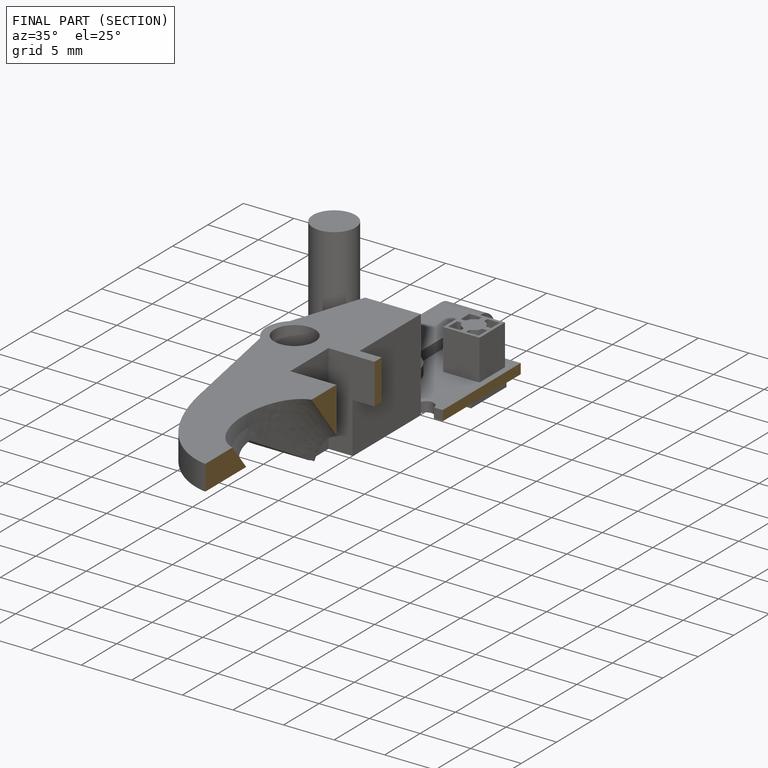
[diagram: finished part — half-section view (interior)]
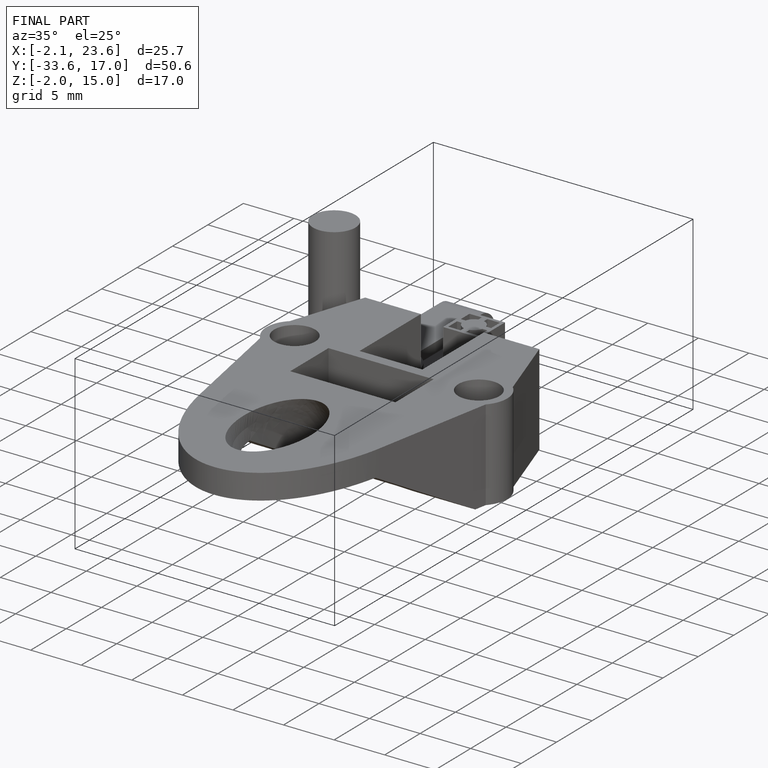
[diagram: finished part — iso view with bounding-box wireframe]
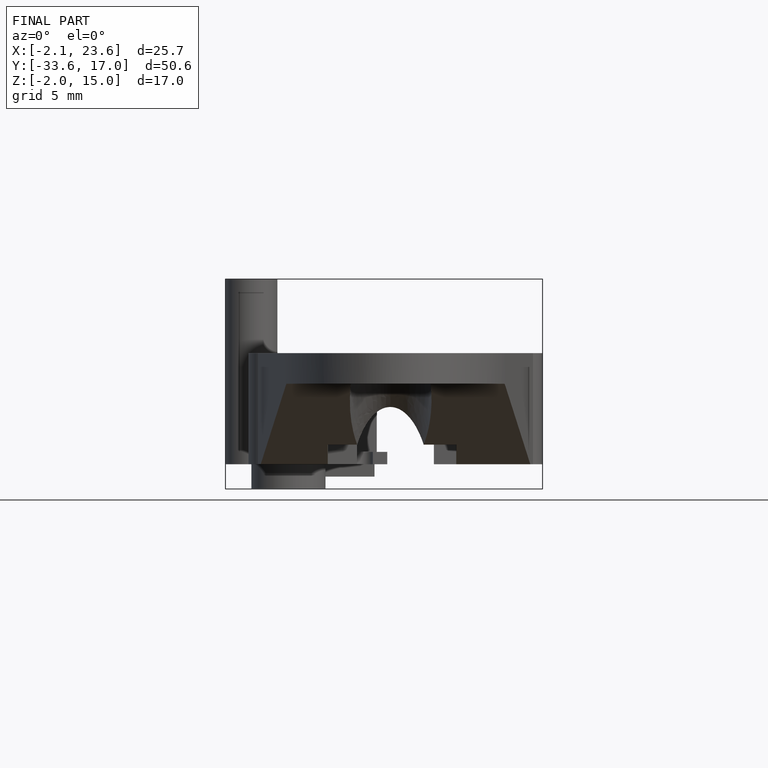
[diagram: finished part — front view with bounding-box wireframe]
